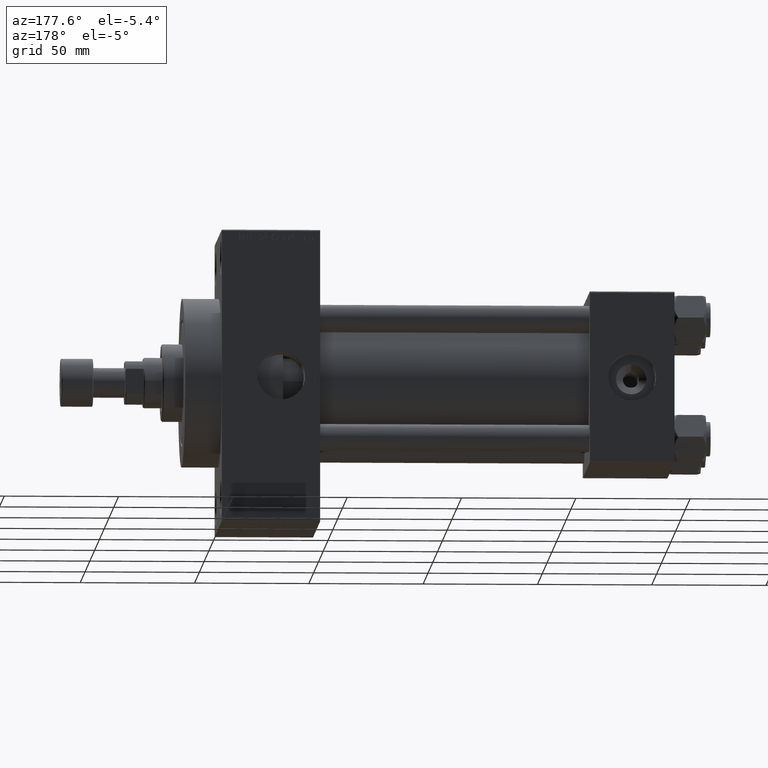
[diagram: clean part render]
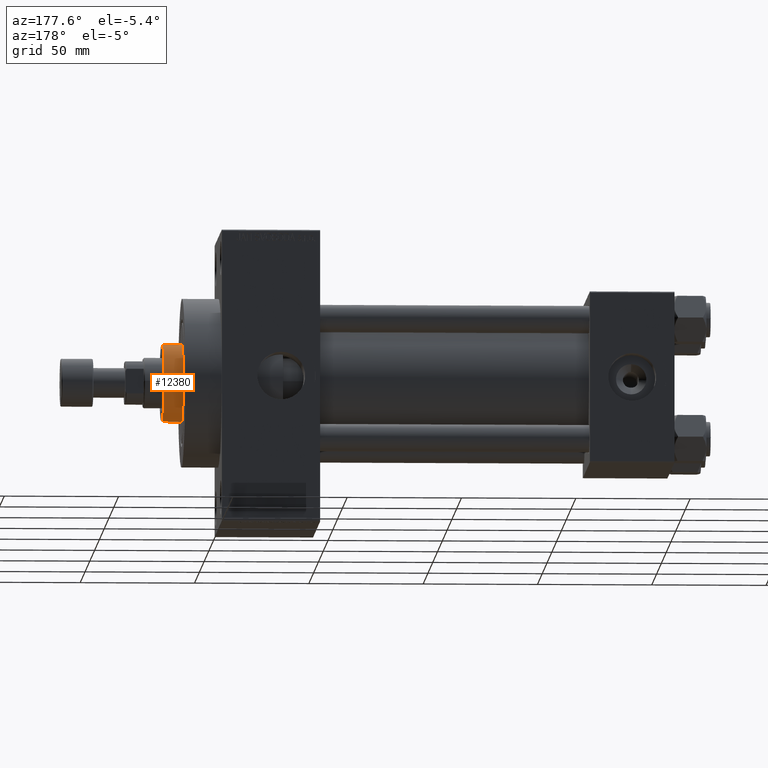
[diagram: same view with one face highlighted and labeled with its STEP entity id]
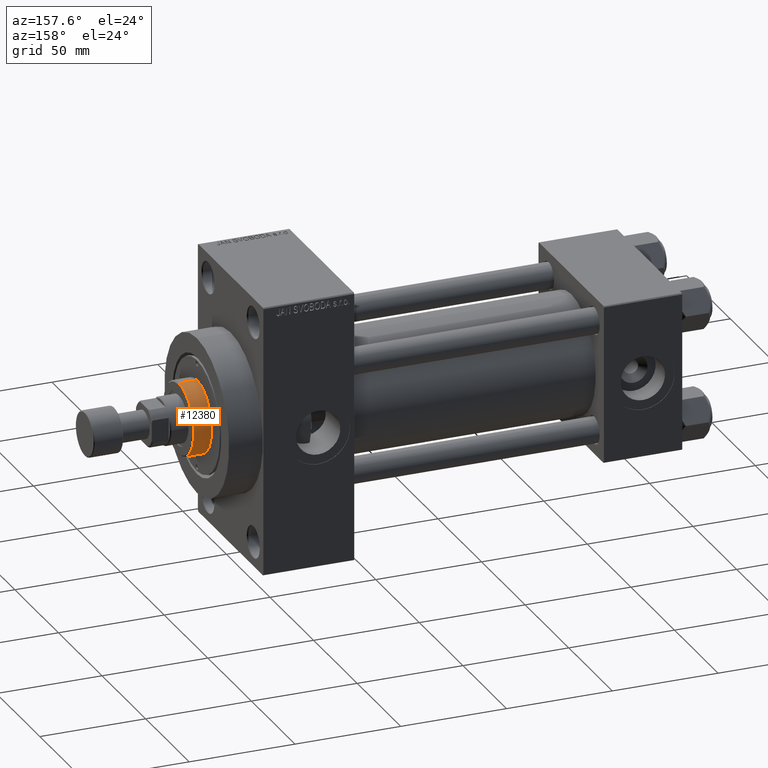
[diagram: same view with one face highlighted and labeled with its STEP entity id]
A machine part, auxiliary view. The second image highlights one B-rep face of the part: STEP entity #12380.
A second angle (auxiliary view) of the same face is appended — the face is thin or edge-on in the first view.
In plain terms, the highlighted cylindrical surface (partial cylindrical patch) has radius 17 mm, axis along (-1, 0, 0).
Its self-contained STEP definition (entity closure, byte-faithful):
#469 = DIRECTION ( 'NONE',  ( -1.000000000000000000, 0.000000000000000000, 0.000000000000000000 ) ) ;
#2679 = VERTEX_POINT ( 'NONE', #14922 ) ;
#3629 = CARTESIAN_POINT ( 'NONE',  ( 17.00000000000000000, 2.081899558550500280E-15, 51.76000000000000512 ) ) ;
#3871 = CYLINDRICAL_SURFACE ( 'NONE', #14321, 17.00000000000000000 ) ;
#4059 = AXIS2_PLACEMENT_3D ( 'NONE', #10798, #36653, #44156 ) ;
#4617 = ORIENTED_EDGE ( 'NONE', *, *, #40064, .T. ) ;
#5092 = EDGE_CURVE ( 'NONE', #2679, #19908, #7930, .T. ) ;
#5887 = EDGE_CURVE ( 'NONE', #31863, #19908, #28090, .T. ) ;
#7411 = LINE ( 'NONE', #15846, #28830 ) ;
#7930 = CIRCLE ( 'NONE', #4059, 17.00000000000000000 ) ;
#10798 = CARTESIAN_POINT ( 'NONE',  ( 0.000000000000000000, 0.000000000000000000, 43.25999999999999801 ) ) ;
#11104 = CARTESIAN_POINT ( 'NONE',  ( 0.000000000000000000, 0.000000000000000000, 52.25999999999999801 ) ) ;
#11356 = CARTESIAN_POINT ( 'NONE',  ( 0.000000000000000000, 0.000000000000000000, 51.76000000000000512 ) ) ;
#12380 = ADVANCED_FACE ( 'NONE', ( #44232 ), #3871, .T. ) ;
#14321 = AXIS2_PLACEMENT_3D ( 'NONE', #11104, #29974, #469 ) ;
#14922 = CARTESIAN_POINT ( 'NONE',  ( -17.00000000000000000, 0.000000000000000000, 43.25999999999999801 ) ) ;
#15846 = CARTESIAN_POINT ( 'NONE',  ( -17.00000000000000000, 0.000000000000000000, 52.25999999999999801 ) ) ;
#16452 = VECTOR ( 'NONE', #45764, 1000.000000000000000 ) ;
#16559 = CARTESIAN_POINT ( 'NONE',  ( 17.00000000000000000, 2.081899558550500280E-15, 43.25999999999999801 ) ) ;
#19908 = VERTEX_POINT ( 'NONE', #16559 ) ;
#20132 = VERTEX_POINT ( 'NONE', #40327 ) ;
#21260 = ORIENTED_EDGE ( 'NONE', *, *, #5092, .T. ) ;
#21402 = CIRCLE ( 'NONE', #47669, 17.00000000000000000 ) ;
#23520 = CARTESIAN_POINT ( 'NONE',  ( 17.00000000000000000, 2.081899558550500280E-15, 52.25999999999999801 ) ) ;
#27191 = EDGE_CURVE ( 'NONE', #31863, #20132, #21402, .T. ) ;
#28090 = LINE ( 'NONE', #23520, #16452 ) ;
#28399 = ORIENTED_EDGE ( 'NONE', *, *, #27191, .T. ) ;
#28830 = VECTOR ( 'NONE', #30364, 1000.000000000000000 ) ;
#29974 = DIRECTION ( 'NONE',  ( -0.000000000000000000, -0.000000000000000000, -1.000000000000000000 ) ) ;
#30364 = DIRECTION ( 'NONE',  ( -0.000000000000000000, -0.000000000000000000, -1.000000000000000000 ) ) ;
#30471 = DIRECTION ( 'NONE',  ( 0.000000000000000000, 0.000000000000000000, -1.000000000000000000 ) ) ;
#30643 = EDGE_LOOP ( 'NONE', ( #38072, #28399, #4617, #21260 ) ) ;
#31863 = VERTEX_POINT ( 'NONE', #3629 ) ;
#33601 = DIRECTION ( 'NONE',  ( 1.000000000000000000, 0.000000000000000000, 0.000000000000000000 ) ) ;
#36653 = DIRECTION ( 'NONE',  ( 0.000000000000000000, 0.000000000000000000, 1.000000000000000000 ) ) ;
#38072 = ORIENTED_EDGE ( 'NONE', *, *, #5887, .F. ) ;
#40064 = EDGE_CURVE ( 'NONE', #20132, #2679, #7411, .T. ) ;
#40327 = CARTESIAN_POINT ( 'NONE',  ( -17.00000000000000000, 0.000000000000000000, 51.76000000000000512 ) ) ;
#44156 = DIRECTION ( 'NONE',  ( 1.000000000000000000, 0.000000000000000000, 0.000000000000000000 ) ) ;
#44232 = FACE_OUTER_BOUND ( 'NONE', #30643, .T. ) ;
#45764 = DIRECTION ( 'NONE',  ( -0.000000000000000000, -0.000000000000000000, -1.000000000000000000 ) ) ;
#47669 = AXIS2_PLACEMENT_3D ( 'NONE', #11356, #30471, #33601 ) ;